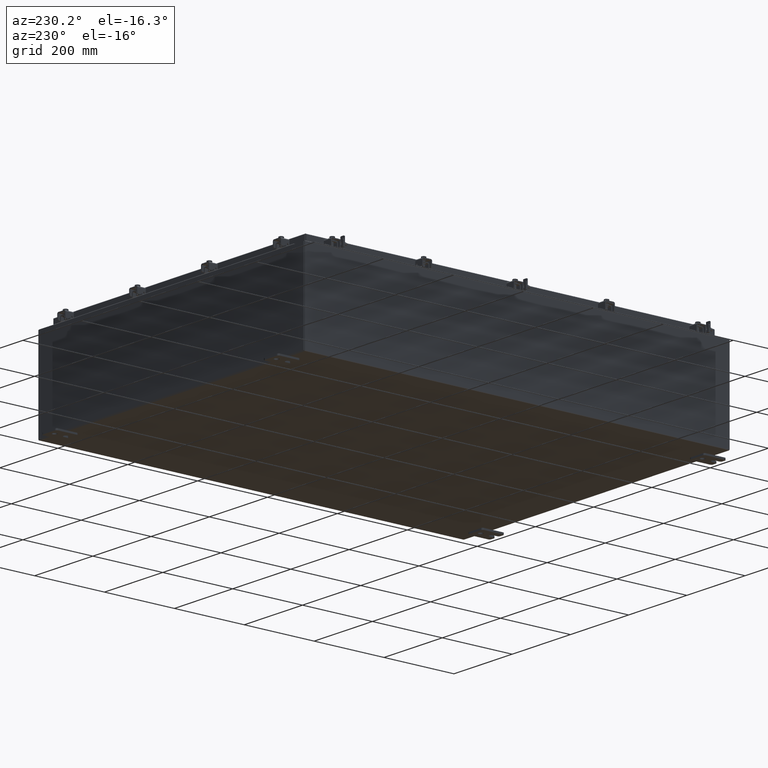
[diagram: clean part render]
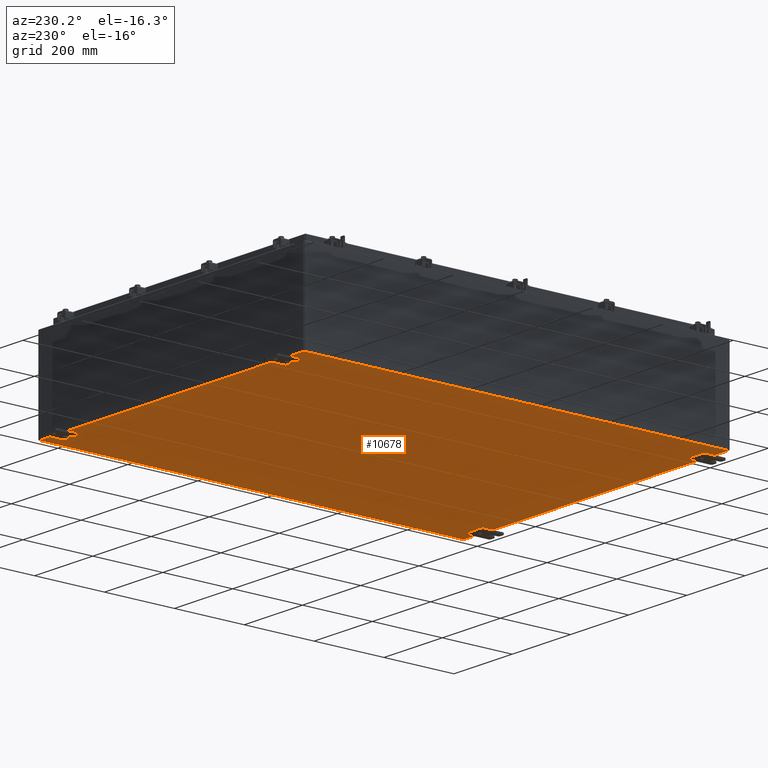
[diagram: same view with one face highlighted and labeled with its STEP entity id]
A machine part, auxiliary view. The second image highlights one B-rep face of the part: STEP entity #10678.
In plain terms, the highlighted planar face has unit normal (0, 0, -1).
Its self-contained STEP definition (entity closure, byte-faithful):
#1401 = FACE_OUTER_BOUND ( 'NONE', #2734, .T. ) ;
#2123 = EDGE_CURVE ( 'NONE', #22505, #23203, #14858, .T. ) ;
#2734 = EDGE_LOOP ( 'NONE', ( #24001, #21528, #23393, #4526 ) ) ;
#2748 = AXIS2_PLACEMENT_3D ( 'NONE', #20180, #7405, #22319 ) ;
#3131 = PLANE ( 'NONE',  #2748 ) ;
#3525 = VECTOR ( 'NONE', #25785, 39.37007874015748100 ) ;
#4526 = ORIENTED_EDGE ( 'NONE', *, *, #2123, .T. ) ;
#4723 = DIRECTION ( 'NONE',  ( -1.000000000000000000, -0.0000000000000000000, -0.0000000000000000000 ) ) ;
#5337 = LINE ( 'NONE', #6528, #11001 ) ;
#6528 = CARTESIAN_POINT ( 'NONE',  ( -18.00000000000000400, -23.92530000000000400, -0.07470000000000000300 ) ) ;
#6935 = CARTESIAN_POINT ( 'NONE',  ( -17.91230000000000500, 23.92529999999998900, -0.07470000000000000300 ) ) ;
#7405 = DIRECTION ( 'NONE',  ( 0.0000000000000000000, 0.0000000000000000000, -1.000000000000000000 ) ) ;
#8259 = LINE ( 'NONE', #17504, #19581 ) ;
#8301 = VECTOR ( 'NONE', #25941, 39.37007874015748100 ) ;
#10678 = ADVANCED_FACE ( 'NONE', ( #1401 ), #3131, .T. ) ;
#10780 = VERTEX_POINT ( 'NONE', #6935 ) ;
#11001 = VECTOR ( 'NONE', #25623, 39.37007874015748100 ) ;
#11048 = CARTESIAN_POINT ( 'NONE',  ( -17.91230000000000500, -23.92529999999998900, -0.07469999999999994700 ) ) ;
#13979 = LINE ( 'NONE', #11048, #8301 ) ;
#14858 = LINE ( 'NONE', #16871, #3525 ) ;
#15039 = VERTEX_POINT ( 'NONE', #22980 ) ;
#15509 = EDGE_CURVE ( 'NONE', #15039, #23203, #5337, .T. ) ;
#16871 = CARTESIAN_POINT ( 'NONE',  ( 17.91229999999999500, 23.92529999999998900, -0.07469999999999688000 ) ) ;
#17504 = CARTESIAN_POINT ( 'NONE',  ( -18.00000000000000400, 23.92530000000000000, -0.07470000000000000300 ) ) ;
#18121 = CARTESIAN_POINT ( 'NONE',  ( 17.91229999999999500, -23.92530000000000000, -0.07470000000000000300 ) ) ;
#19258 = EDGE_CURVE ( 'NONE', #15039, #10780, #13979, .T. ) ;
#19581 = VECTOR ( 'NONE', #4723, 39.37007874015748100 ) ;
#20180 = CARTESIAN_POINT ( 'NONE',  ( 0.0000000000000000000, 0.0000000000000000000, -0.07470000000000000300 ) ) ;
#21220 = EDGE_CURVE ( 'NONE', #22505, #10780, #8259, .T. ) ;
#21528 = ORIENTED_EDGE ( 'NONE', *, *, #19258, .T. ) ;
#22031 = CARTESIAN_POINT ( 'NONE',  ( 17.91229999999999500, 23.92529999999998600, -0.07469999999999688000 ) ) ;
#22319 = DIRECTION ( 'NONE',  ( -1.000000000000000000, 0.0000000000000000000, -0.0000000000000000000 ) ) ;
#22505 = VERTEX_POINT ( 'NONE', #22031 ) ;
#22980 = CARTESIAN_POINT ( 'NONE',  ( -17.91230000000000500, -23.92529999999998600, -0.07469999999999994700 ) ) ;
#23203 = VERTEX_POINT ( 'NONE', #18121 ) ;
#23393 = ORIENTED_EDGE ( 'NONE', *, *, #21220, .F. ) ;
#24001 = ORIENTED_EDGE ( 'NONE', *, *, #15509, .F. ) ;
#25623 = DIRECTION ( 'NONE',  ( 1.000000000000000000, 1.214154663850783700E-016, 0.0000000000000000000 ) ) ;
#25785 = DIRECTION ( 'NONE',  ( -0.0000000000000000000, -1.000000000000000000, -8.208677865577646300E-017 ) ) ;
#25941 = DIRECTION ( 'NONE',  ( -0.0000000000000000000, 1.000000000000000000, -0.0000000000000000000 ) ) ;